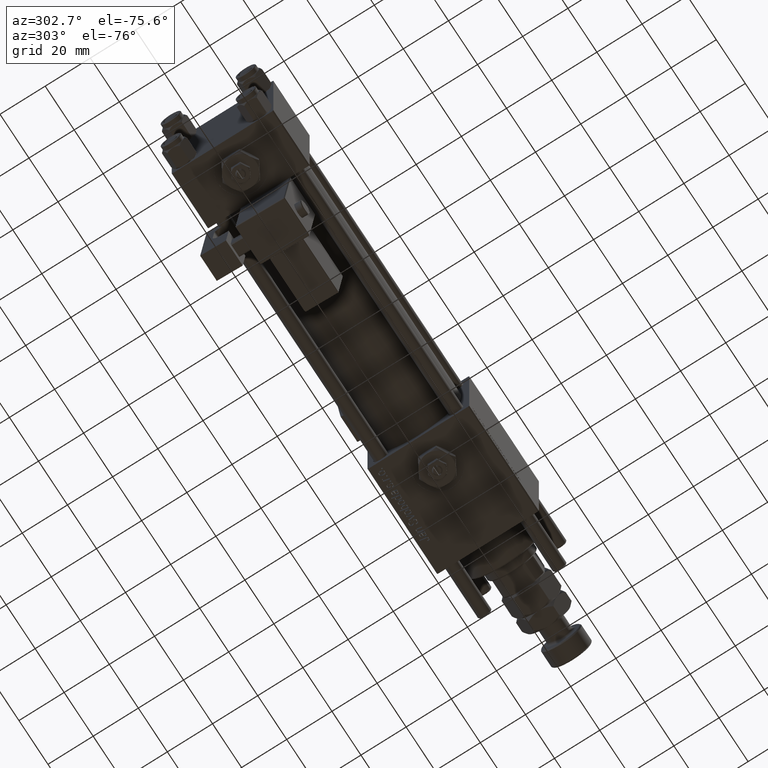
[diagram: clean part render]
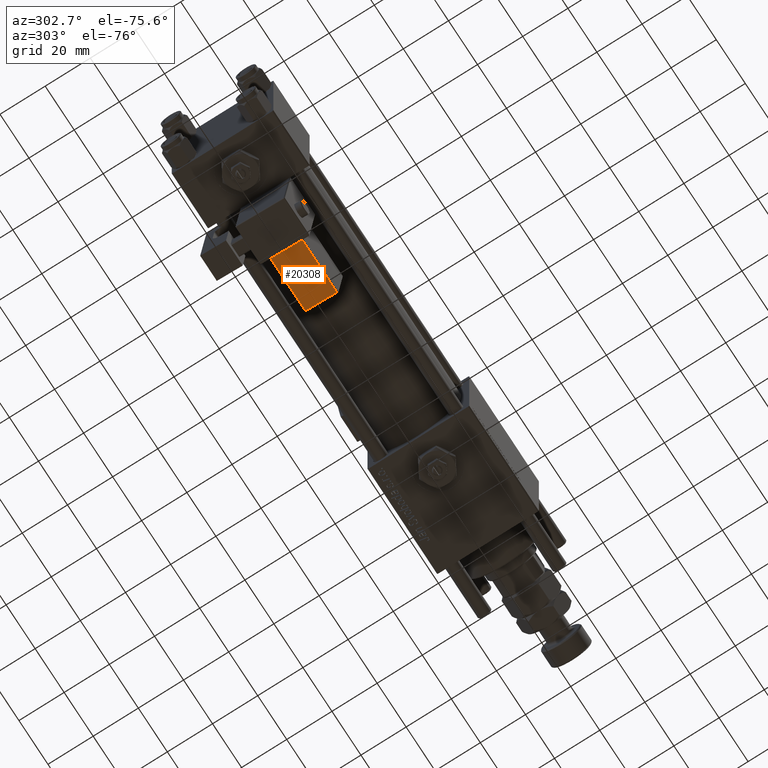
[diagram: same view with one face highlighted and labeled with its STEP entity id]
A machine part, auxiliary view. The second image highlights one B-rep face of the part: STEP entity #20308.
In plain terms, the highlighted planar face has unit normal (-0, -0.1003, 0.995).
Its self-contained STEP definition (entity closure, byte-faithful):
#740 = CARTESIAN_POINT ( 'NONE',  ( 33.25000000000000000, -15.75000000000000000, 2.000000000000008438 ) ) ;
#933 = EDGE_CURVE ( 'NONE', #13475, #46146, #43270, .T. ) ;
#3697 = ORIENTED_EDGE ( 'NONE', *, *, #12795, .T. ) ;
#8523 = LINE ( 'NONE', #17427, #30999 ) ;
#12795 = EDGE_CURVE ( 'NONE', #23703, #57299, #36967, .T. ) ;
#13475 = VERTEX_POINT ( 'NONE', #34191 ) ;
#14661 = EDGE_CURVE ( 'NONE', #57299, #13475, #52570, .T. ) ;
#16192 = CARTESIAN_POINT ( 'NONE',  ( 9.250000000000005329, -29.75000000000000000, 2.000000000000003553 ) ) ;
#16247 = EDGE_CURVE ( 'NONE', #46146, #23703, #8523, .T. ) ;
#16990 = CARTESIAN_POINT ( 'NONE',  ( 33.75000000000000000, -15.75000000000000000, 2.000000000000008438 ) ) ;
#17427 = CARTESIAN_POINT ( 'NONE',  ( 9.250000000000005329, -15.25000000000000000, 2.000000000000005329 ) ) ;
#19536 = CARTESIAN_POINT ( 'NONE',  ( 33.25000000000000000, -30.25000000000000000, 2.000000000000006661 ) ) ;
#20308 = ADVANCED_FACE ( 'NONE', ( #26040 ), #26337, .F. ) ;
#23703 = VERTEX_POINT ( 'NONE', #62334 ) ;
#26040 = FACE_OUTER_BOUND ( 'NONE', #54025, .T. ) ;
#26337 = PLANE ( 'NONE',  #43840 ) ;
#26455 = ORIENTED_EDGE ( 'NONE', *, *, #14661, .T. ) ;
#26648 = CARTESIAN_POINT ( 'NONE',  ( 33.75000000000000000, -15.25000000000000000, 2.000000000000008438 ) ) ;
#30999 = VECTOR ( 'NONE', #60621, 1000.000000000000000 ) ;
#34191 = CARTESIAN_POINT ( 'NONE',  ( 33.25000000000000000, -29.75000000000000000, 2.000000000000006661 ) ) ;
#36191 = DIRECTION ( 'NONE',  ( 1.000000000000000000, 0.000000000000000000, 1.334402673828313339E-16 ) ) ;
#36967 = LINE ( 'NONE', #16990, #56357 ) ;
#40078 = VECTOR ( 'NONE', #43012, 1000.000000000000000 ) ;
#43012 = DIRECTION ( 'NONE',  ( 5.473822126268816683E-48, -1.000000000000000000, -1.156482317317871725E-16 ) ) ;
#43270 = LINE ( 'NONE', #57565, #57933 ) ;
#43840 = AXIS2_PLACEMENT_3D ( 'NONE', #26648, #55572, #36191 ) ;
#46146 = VERTEX_POINT ( 'NONE', #16192 ) ;
#49294 = ORIENTED_EDGE ( 'NONE', *, *, #16247, .T. ) ;
#52570 = LINE ( 'NONE', #19536, #40078 ) ;
#53133 = DIRECTION ( 'NONE',  ( -1.000000000000000000, 0.000000000000000000, -1.334402673828313339E-16 ) ) ;
#54025 = EDGE_LOOP ( 'NONE', ( #26455, #57306, #49294, #3697 ) ) ;
#55572 = DIRECTION ( 'NONE',  ( -1.334402673828313339E-16, -1.156482317317871725E-16, 1.000000000000000000 ) ) ;
#56357 = VECTOR ( 'NONE', #61405, 1000.000000000000000 ) ;
#57299 = VERTEX_POINT ( 'NONE', #740 ) ;
#57306 = ORIENTED_EDGE ( 'NONE', *, *, #933, .T. ) ;
#57565 = CARTESIAN_POINT ( 'NONE',  ( 33.75000000000000000, -29.75000000000000000, 2.000000000000006661 ) ) ;
#57933 = VECTOR ( 'NONE', #53133, 1000.000000000000000 ) ;
#60621 = DIRECTION ( 'NONE',  ( -1.543213096464132036E-32, 1.000000000000000000, 1.156482317317871725E-16 ) ) ;
#61405 = DIRECTION ( 'NONE',  ( 1.000000000000000000, -0.000000000000000000, 1.334402673828313339E-16 ) ) ;
#62334 = CARTESIAN_POINT ( 'NONE',  ( 9.250000000000005329, -15.75000000000000000, 2.000000000000004885 ) ) ;